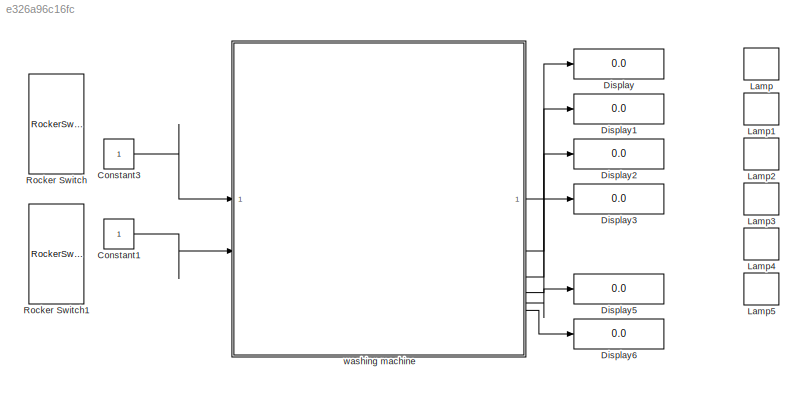
MODEL slx_e326a96c16fc
KIND model
CONFIG AbsTol = auto
CONFIG EnableMultiTasking = off
CONFIG FixedStep = auto
CONFIG MaxStep = auto
CONFIG MinStep = auto
CONFIG RelTol = 1e-3
CONFIG SampleTimeConstraint = Unconstrained
CONFIG SolverName = VariableStepAuto
CONFIG StartTime = 0.0
CONFIG StopTime = inf
BLOCK [Constant] Constant1
BLOCK [Constant] Constant3
BLOCK [Display] Display
  Decimation = 1
BLOCK [Display] Display1
  Decimation = 1
BLOCK [Display] Display2
  Decimation = 1
BLOCK [Display] Display3
  Decimation = 1
BLOCK [Display] Display5
  Decimation = 1
BLOCK [Display] Display6
  Decimation = 1
BLOCK [LampBlock] Lamp
  LabelPosition = Hide
BLOCK [LampBlock] Lamp1
  LabelPosition = Hide
BLOCK [LampBlock] Lamp2
  LabelPosition = Hide
BLOCK [LampBlock] Lamp3
  LabelPosition = Hide
BLOCK [LampBlock] Lamp4
  LabelPosition = Hide
BLOCK [LampBlock] Lamp5
  LabelPosition = Hide
BLOCK [RockerSwitchBlock] Rocker Switch
BLOCK [RockerSwitchBlock] Rocker Switch1
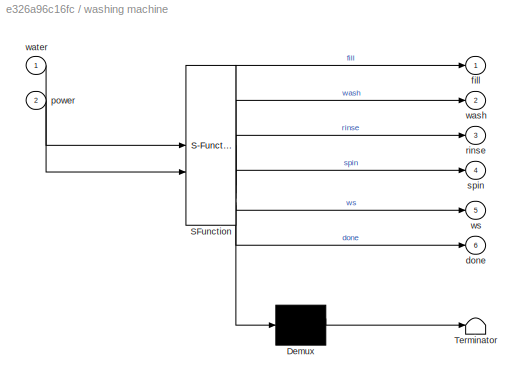
BLOCK [SubSystem] washing machine
  ErrorFcn = Stateflow.Translate.translate
  PermitHierarchicalResolution = ExplicitOnly
  SFBlockType = Chart
  TreatAsAtomicUnit = on
BLOCK [Demux] washing machine/ Demux 
  Outputs = 1
BLOCK [S-Function] washing machine/ SFunction 
  EnableBusSupport = on
  FunctionName = sf_sfun
  PortCounts = [2 7]
  SFcnIsStateOwnerBlock = off
  SFunctionDeploymentMode = off
  Tag = Stateflow S-Function 3
BLOCK [Terminator] washing machine/ Terminator 
BLOCK [Outport] washing machine/done
  Port = 6
BLOCK [Outport] washing machine/fill
BLOCK [Inport] washing machine/power
  Port = 2
BLOCK [Outport] washing machine/rinse
  Port = 3
BLOCK [Outport] washing machine/spin
  Port = 4
BLOCK [Outport] washing machine/wash
  Port = 2
BLOCK [Inport] washing machine/water
BLOCK [Outport] washing machine/ws
  Port = 5
LINE Constant1:1 -> washing machine:2
LINE Constant3:1 -> washing machine:1
LINE washing machine:1 -> Display:1
LINE washing machine:2 -> Display1:1
LINE washing machine:3 -> Display2:1
LINE washing machine:4 -> Display3:1
LINE washing machine:5 -> Display5:1
LINE washing machine:6 -> Display6:1
CHART washing machine states=8 transitions=8
  STATE_LABEL 'power_supply'
  STATE_LABEL 'water_supply\n'
  STATE_LABEL 'fill\nentry:\nfill=1;'
  STATE_LABEL 'wash\nentry:\nfill=0,wash=1;'
  STATE_LABEL 'rinse\nentry:\nwash=0,rinse=1;'
  STATE_LABEL 'spin\nentry:\nrinse=0,spin=1;'
  STATE_LABEL 'done\nentry:\nspin=0,done=1;\n'
  STATE_LABEL 'water_indicator\nentry:\nws=1;'
CHART  states=0 transitions=0
